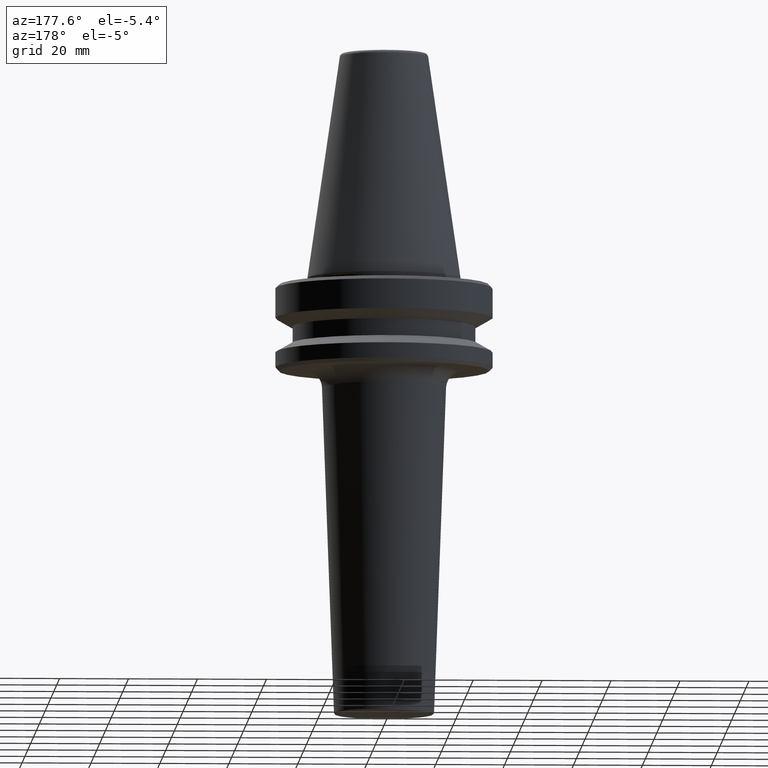
[diagram: clean part render]
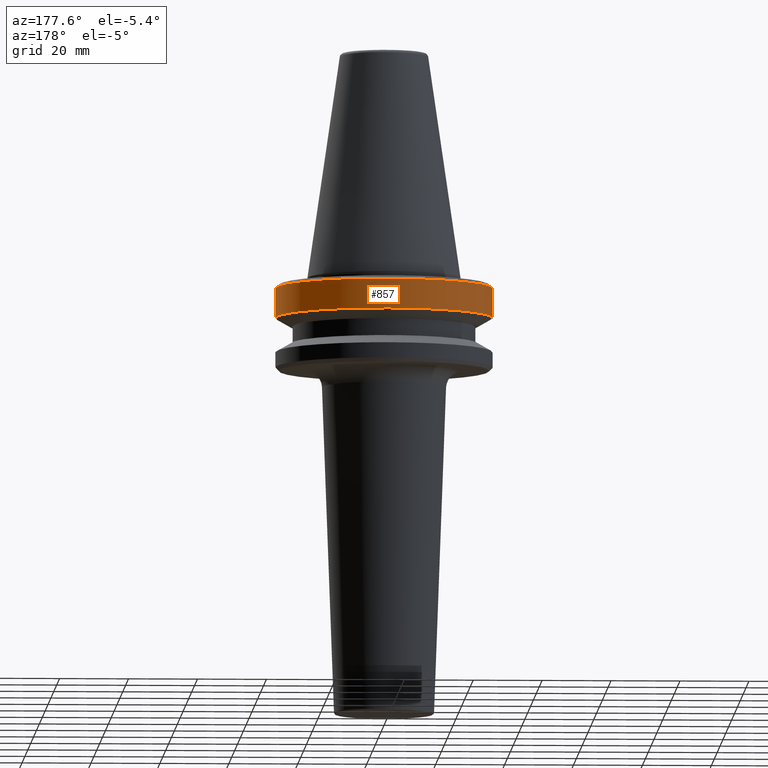
[diagram: same view with one face highlighted and labeled with its STEP entity id]
A machine part, auxiliary view. The second image highlights one B-rep face of the part: STEP entity #857.
In plain terms, the highlighted cylindrical surface (partial cylindrical patch) has radius 31.5 mm, axis along (-0, -0, 1).
Its self-contained STEP definition (entity closure, byte-faithful):
#24 = CARTESIAN_POINT ( 'NONE',  ( 0.0000000000000000000, 0.0000000000000000000, -76.99985799368391800 ) ) ;
#27 = DIRECTION ( 'NONE',  ( -0.0000000000000000000, -0.0000000000000000000, 1.000000000000000000 ) ) ;
#34 = AXIS2_PLACEMENT_3D ( 'NONE', #100, #27, #444 ) ;
#50 = CARTESIAN_POINT ( 'NONE',  ( 31.50000000000008500, 0.0000000000000000000, 6.357346922996331500 ) ) ;
#96 = DIRECTION ( 'NONE',  ( -0.0000000000000000000, -0.0000000000000000000, 1.000000000000000000 ) ) ;
#100 = CARTESIAN_POINT ( 'NONE',  ( 0.0000000000000000000, 0.0000000000000000000, -68.40000000000046000 ) ) ;
#119 = ORIENTED_EDGE ( 'NONE', *, *, #719, .F. ) ;
#136 = CARTESIAN_POINT ( 'NONE',  ( 0.0000000000000000000, 0.0000000000000000000, 6.357346922996331500 ) ) ;
#144 = LINE ( 'NONE', #50, #971 ) ;
#160 = CARTESIAN_POINT ( 'NONE',  ( -31.50000000000008500, 3.857637417314172900E-015, 6.357346922996331500 ) ) ;
#164 = EDGE_CURVE ( 'NONE', #559, #197, #675, .T. ) ;
#197 = VERTEX_POINT ( 'NONE', #517 ) ;
#278 = ORIENTED_EDGE ( 'NONE', *, *, #820, .F. ) ;
#296 = DIRECTION ( 'NONE',  ( 1.000000000000000000, 0.0000000000000000000, 0.0000000000000000000 ) ) ;
#309 = DIRECTION ( 'NONE',  ( -0.0000000000000000000, -0.0000000000000000000, 1.000000000000000000 ) ) ;
#315 = CYLINDRICAL_SURFACE ( 'NONE', #908, 31.50000000000008500 ) ;
#411 = CARTESIAN_POINT ( 'NONE',  ( 31.50000000000008500, 0.0000000000000000000, -68.40000000000046000 ) ) ;
#427 = VERTEX_POINT ( 'NONE', #772 ) ;
#444 = DIRECTION ( 'NONE',  ( 1.000000000000000000, 0.0000000000000000000, 0.0000000000000000000 ) ) ;
#477 = DIRECTION ( 'NONE',  ( 1.000000000000000000, 0.0000000000000000000, 0.0000000000000000000 ) ) ;
#517 = CARTESIAN_POINT ( 'NONE',  ( -31.50000000000008500, 3.857637417314172900E-015, -68.40000000000046000 ) ) ;
#539 = ORIENTED_EDGE ( 'NONE', *, *, #164, .T. ) ;
#559 = VERTEX_POINT ( 'NONE', #832 ) ;
#592 = FACE_OUTER_BOUND ( 'NONE', #941, .T. ) ;
#675 = LINE ( 'NONE', #160, #880 ) ;
#719 = EDGE_CURVE ( 'NONE', #720, #197, #872, .T. ) ;
#720 = VERTEX_POINT ( 'NONE', #411 ) ;
#772 = CARTESIAN_POINT ( 'NONE',  ( 31.50000000000008500, 0.0000000000000000000, -76.99985799368391800 ) ) ;
#778 = DIRECTION ( 'NONE',  ( -0.0000000000000000000, -0.0000000000000000000, 1.000000000000000000 ) ) ;
#783 = ORIENTED_EDGE ( 'NONE', *, *, #873, .T. ) ;
#793 = AXIS2_PLACEMENT_3D ( 'NONE', #24, #309, #296 ) ;
#820 = EDGE_CURVE ( 'NONE', #427, #720, #144, .T. ) ;
#832 = CARTESIAN_POINT ( 'NONE',  ( -31.50000000000008500, 3.857637417314172900E-015, -76.99985799368391800 ) ) ;
#857 = ADVANCED_FACE ( 'NONE', ( #592 ), #315, .T. ) ;
#872 = CIRCLE ( 'NONE', #34, 31.50000000000008500 ) ;
#873 = EDGE_CURVE ( 'NONE', #427, #559, #953, .T. ) ;
#880 = VECTOR ( 'NONE', #96, 1000.000000000000000 ) ;
#884 = DIRECTION ( 'NONE',  ( -0.0000000000000000000, -0.0000000000000000000, 1.000000000000000000 ) ) ;
#908 = AXIS2_PLACEMENT_3D ( 'NONE', #136, #884, #477 ) ;
#941 = EDGE_LOOP ( 'NONE', ( #783, #539, #119, #278 ) ) ;
#953 = CIRCLE ( 'NONE', #793, 31.50000000000008500 ) ;
#971 = VECTOR ( 'NONE', #778, 1000.000000000000000 ) ;